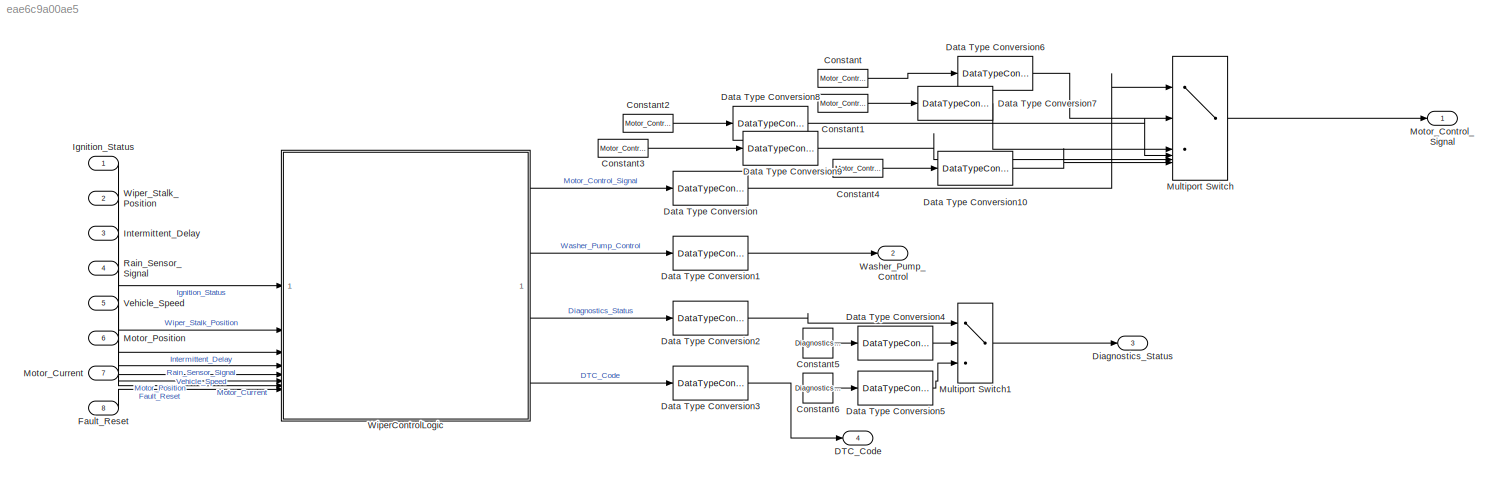
MODEL slx_eae6c9a00ae5
KIND model
CONFIG AbsTol = auto
CONFIG EnableMultiTasking = off
CONFIG FixedStep = auto
CONFIG MaxStep = auto
CONFIG MinStep = auto
CONFIG RelTol = 1e-3
CONFIG SampleTimeConstraint = Unconstrained
CONFIG SolverName = VariableStepAuto
CONFIG StartTime = 0.0
CONFIG StopTime = 10.0
BLOCK [Constant] Constant
  OutDataTypeStr = Enum: Motor_Control_Signal_Enum
  Value = Motor_Control_Signal_Enum.OFF
BLOCK [Constant] Constant1
  OutDataTypeStr = Enum: Motor_Control_Signal_Enum
  Value = Motor_Control_Signal_Enum.LOW
BLOCK [Constant] Constant2
  OutDataTypeStr = Enum: Motor_Control_Signal_Enum
  Value = Motor_Control_Signal_Enum.HIGH
BLOCK [Constant] Constant3
  OutDataTypeStr = Enum: Motor_Control_Signal_Enum
  Value = Motor_Control_Signal_Enum.INTERMITTENT
BLOCK [Constant] Constant4
  OutDataTypeStr = Enum: Motor_Control_Signal_Enum
  Value = Motor_Control_Signal_Enum.WASHER
BLOCK [Constant] Constant5
  OutDataTypeStr = Enum: Diagnostics_Status_Enum
  Value = Diagnostics_Status_Enum.OK
BLOCK [Constant] Constant6
  OutDataTypeStr = Enum: Diagnostics_Status_Enum
  Value = Diagnostics_Status_Enum.FAULT
BLOCK [Outport] DTC_Code
  OutDataTypeStr = uint16
  Port = 4
BLOCK [DataTypeConversion] Data Type Conversion
  RndMeth = Floor
  SaturateOnIntegerOverflow = off
BLOCK [DataTypeConversion] Data Type Conversion1
  RndMeth = Floor
  SaturateOnIntegerOverflow = off
BLOCK [DataTypeConversion] Data Type Conversion10
  OutDataTypeStr = uint8
  RndMeth = Floor
  SaturateOnIntegerOverflow = off
BLOCK [DataTypeConversion] Data Type Conversion2
  RndMeth = Floor
  SaturateOnIntegerOverflow = off
BLOCK [DataTypeConversion] Data Type Conversion3
  RndMeth = Floor
  SaturateOnIntegerOverflow = off
BLOCK [DataTypeConversion] Data Type Conversion4
  OutDataTypeStr = uint8
  RndMeth = Floor
  SaturateOnIntegerOverflow = off
BLOCK [DataTypeConversion] Data Type Conversion5
  OutDataTypeStr = uint8
  RndMeth = Floor
  SaturateOnIntegerOverflow = off
BLOCK [DataTypeConversion] Data Type Conversion6
  OutDataTypeStr = uint8
  RndMeth = Floor
  SaturateOnIntegerOverflow = off
BLOCK [DataTypeConversion] Data Type Conversion7
  OutDataTypeStr = uint8
  RndMeth = Floor
  SaturateOnIntegerOverflow = off
BLOCK [DataTypeConversion] Data Type Conversion8
  OutDataTypeStr = uint8
  RndMeth = Floor
  SaturateOnIntegerOverflow = off
BLOCK [DataTypeConversion] Data Type Conversion9
  OutDataTypeStr = uint8
  RndMeth = Floor
  SaturateOnIntegerOverflow = off
BLOCK [Outport] Diagnostics_Status
  OutDataTypeStr = uint8
  Port = 3
BLOCK [Inport] Fault_Reset
  OutDataTypeStr = boolean
  Port = 8
BLOCK [Inport] Ignition_Status
  OutDataTypeStr = boolean
BLOCK [Inport] Intermittent_Delay
  OutDataTypeStr = double
  Port = 3
BLOCK [Outport] Motor_Control_Signal
  OutDataTypeStr = uint8
BLOCK [Inport] Motor_Current
  OutDataTypeStr = double
  Port = 7
BLOCK [Inport] Motor_Position
  OutDataTypeStr = double
  Port = 6
BLOCK [MultiPortSwitch] Multiport Switch
  DataPortForDefault = Additional data port
  DataPortOrder = Zero-based contiguous
  InputSameDT = off
  Inputs = 5
  SaturateOnIntegerOverflow = off
  zeroidx = on
BLOCK [MultiPortSwitch] Multiport Switch1
  DataPortForDefault = Additional data port
  DataPortOrder = Zero-based contiguous
  InputSameDT = off
  Inputs = 2
  OutDataTypeStr = uint8
  SaturateOnIntegerOverflow = off
  zeroidx = on
BLOCK [Inport] Rain_Sensor_Signal
  OutDataTypeStr = double
  Port = 4
BLOCK [Inport] Vehicle_Speed
  OutDataTypeStr = double
  Port = 5
BLOCK [Outport] Washer_Pump_Control
  OutDataTypeStr = boolean
  Port = 2
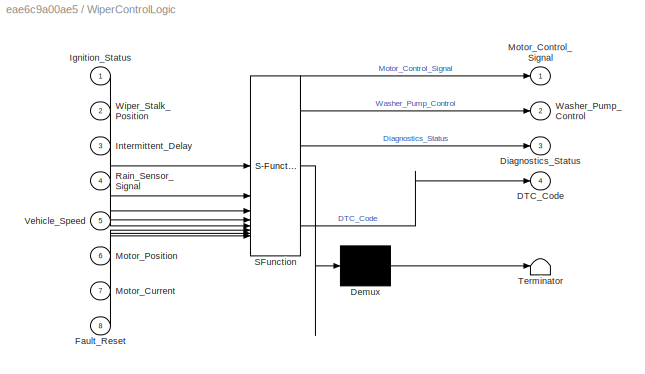
BLOCK [SubSystem] WiperControlLogic
  ErrorFcn = Stateflow.Translate.translate
  LibrarySourceBlock = simulink/User-Defined\nFunctions/MATLAB Function
  PermitHierarchicalResolution = ExplicitOnly
  SFBlockType = MATLAB Function
  TreatAsAtomicUnit = on
BLOCK [Demux] WiperControlLogic/ Demux 
  Outputs = 1
BLOCK [S-Function] WiperControlLogic/ SFunction 
  EnableBusSupport = on
  FunctionName = sf_sfun
  PortCounts = [8 5]
  SFcnIsStateOwnerBlock = off
  SFunctionDeploymentMode = off
  Tag = Stateflow S-Function 2
BLOCK [Terminator] WiperControlLogic/ Terminator 
BLOCK [Outport] WiperControlLogic/DTC_Code
  Port = 4
BLOCK [Outport] WiperControlLogic/Diagnostics_Status
  Port = 3
BLOCK [Inport] WiperControlLogic/Fault_Reset
  Port = 8
BLOCK [Inport] WiperControlLogic/Ignition_Status
BLOCK [Inport] WiperControlLogic/Intermittent_Delay
  Port = 3
BLOCK [Outport] WiperControlLogic/Motor_Control_Signal
BLOCK [Inport] WiperControlLogic/Motor_Current
  Port = 7
BLOCK [Inport] WiperControlLogic/Motor_Position
  Port = 6
BLOCK [Inport] WiperControlLogic/Rain_Sensor_Signal
  Port = 4
BLOCK [Inport] WiperControlLogic/Vehicle_Speed
  Port = 5
BLOCK [Outport] WiperControlLogic/Washer_Pump_Control
  Port = 2
BLOCK [Inport] WiperControlLogic/Wiper_Stalk_Position
  Port = 2
BLOCK [Inport] Wiper_Stalk_Position
  OutDataTypeStr = uint8
  Port = 2
LINE Constant1:1 -> Data Type Conversion7:1
LINE Constant2:1 -> Data Type Conversion8:1
LINE Constant3:1 -> Data Type Conversion9:1
LINE Constant4:1 -> Data Type Conversion10:1
LINE Constant5:1 -> Data Type Conversion4:1
LINE Constant6:1 -> Data Type Conversion5:1
LINE Constant:1 -> Data Type Conversion6:1
LINE Data Type Conversion10:1 -> Multiport Switch:6
LINE Data Type Conversion1:1 -> Washer_Pump_Control:1
LINE Data Type Conversion2:1 -> Multiport Switch1:1
LINE Data Type Conversion3:1 -> DTC_Code:1
LINE Data Type Conversion4:1 -> Multiport Switch1:2
LINE Data Type Conversion5:1 -> Multiport Switch1:3
LINE Data Type Conversion6:1 -> Multiport Switch:2
LINE Data Type Conversion7:1 -> Multiport Switch:3
LINE Data Type Conversion8:1 -> Multiport Switch:4
LINE Data Type Conversion9:1 -> Multiport Switch:5
LINE Data Type Conversion:1 -> Multiport Switch:1
LINE Fault_Reset:1 -> WiperControlLogic:8
LINE Ignition_Status:1 -> WiperControlLogic:1
LINE Intermittent_Delay:1 -> WiperControlLogic:3
LINE Motor_Current:1 -> WiperControlLogic:7
LINE Motor_Position:1 -> WiperControlLogic:6
LINE Multiport Switch1:1 -> Diagnostics_Status:1
LINE Multiport Switch:1 -> Motor_Control_Signal:1
LINE Rain_Sensor_Signal:1 -> WiperControlLogic:4
LINE Vehicle_Speed:1 -> WiperControlLogic:5
LINE WiperControlLogic:1 -> Data Type Conversion:1
LINE WiperControlLogic:2 -> Data Type Conversion1:1
LINE WiperControlLogic:3 -> Data Type Conversion2:1
LINE WiperControlLogic:4 -> Data Type Conversion3:1
LINE Wiper_Stalk_Position:1 -> WiperControlLogic:2
CHART WiperControlLogic states=1 transitions=1
  STATE_LABEL 'eML_blk_kernel()'
  STATE_LABEL 'SCRIPT:\nfunction [Motor_Control_Signal, Washer_Pump_Control, Diagnostics_Status, DTC_Code] = ...\n    WiperControlLogic(Ignition_Status, Wiper_Stalk_Position, Intermittent_Delay, ...\n    Rain_Sensor_Signal, Vehicle_Speed, Motor_Position, Motor_Current, Fault_Reset)\n\n    % Constants\n    PARK_POSITION = 0;         % Motor park position\n    MAX_CURRENT = 10.0;        % Max allowable current (in Amps)\n...<+3098ch>'
CHART  states=0 transitions=0
